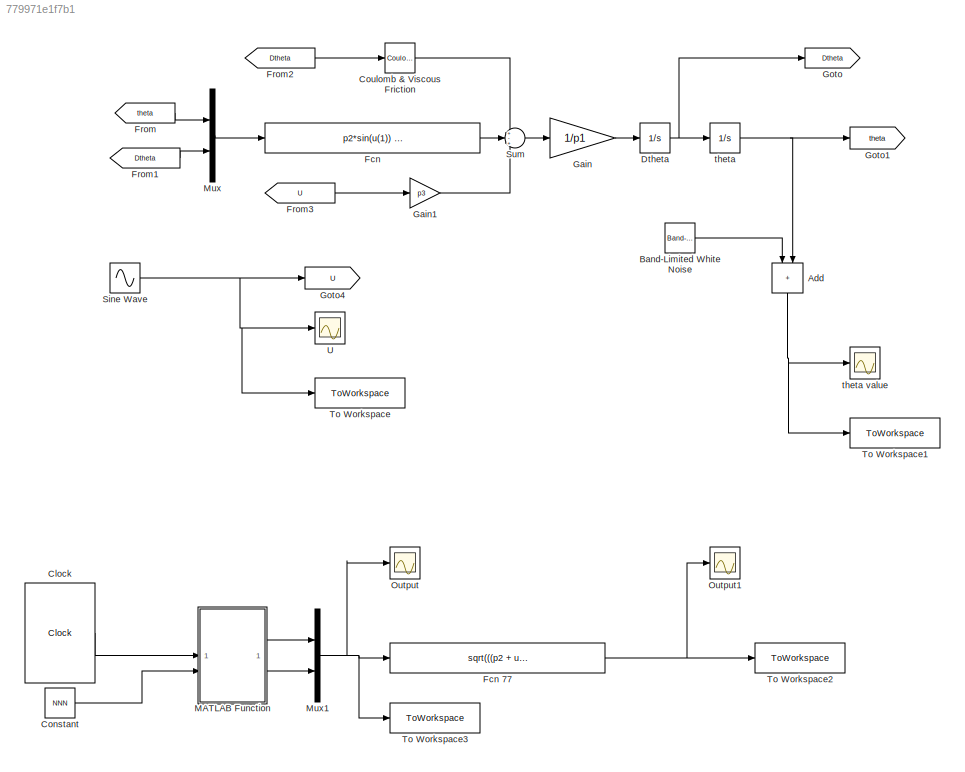
MODEL slx_779971e1f7b1
KIND model
CONFIG AbsTol = 1e-6
CONFIG EnableMultiTasking = off
CONFIG FixedStep = step_size
CONFIG MaxStep = auto
CONFIG MinStep = auto
CONFIG RelTol = 1e-6
CONFIG SampleTimeConstraint = Unconstrained
CONFIG SolverName = FixedStepAuto
CONFIG StartTime = 0.0
CONFIG StopTime = T
BLOCK [Sum] Add
  IconShape = rectangular
  NameLocation = left
BLOCK [Reference] Band-Limited White Noise  REF=simulink/Sources/Band-Limited
White Noise
  SourceBlock = simulink/Sources/Band-Limited\nWhite Noise
  SourceType = Band-Limited White Noise.
BLOCK [Clock] Clock
  Decimation = 100
  DisplayTime = on
BLOCK [Constant] Constant
  Value = NNN
BLOCK [Reference] Coulomb & Viscous Friction  REF=simulink/Discontinuities/Coulomb &
Viscous Friction
  SourceBlock = simulink/Discontinuities/Coulomb &\nViscous Friction
  SourceType = Coulombic and Viscous Friction
BLOCK [Integrator] Dtheta
  InitialCondition = Dth0
BLOCK [Fcn] Fcn
  Expr = p2*sin(u(1)) + Kf*u(2)
BLOCK [Fcn] Fcn 77
  Expr = sqrt(((p2 + u(1) * u(2) * g) / (p1 + u(1) * u(2)^2)) - (0.5) * (Kf^2) / ((p1 + u(1) * (u(2)^2))^2))
BLOCK [From] From
  GotoTag = theta
BLOCK [From] From1
  GotoTag = Dtheta
BLOCK [From] From2
  GotoTag = Dtheta
BLOCK [From] From3
  GotoTag = U
BLOCK [Gain] Gain
  Gain = 1/p1
BLOCK [Gain] Gain1
  Gain = p3
BLOCK [Goto] Goto
  GotoTag = Dtheta
BLOCK [Goto] Goto1
  GotoTag = theta
BLOCK [Goto] Goto4
  GotoTag = U
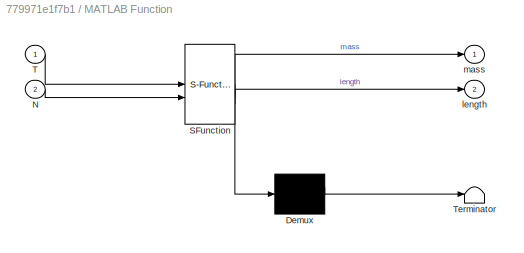
BLOCK [SubSystem] MATLAB Function
  ErrorFcn = Stateflow.Translate.translate
  PermitHierarchicalResolution = ExplicitOnly
  SFBlockType = MATLAB Function
  TreatAsAtomicUnit = on
BLOCK [Demux] MATLAB Function/ Demux 
  Outputs = 1
BLOCK [S-Function] MATLAB Function/ SFunction 
  EnableBusSupport = on
  FunctionName = sf_sfun
  PortCounts = [2 3]
  SFcnIsStateOwnerBlock = off
  SFunctionDeploymentMode = off
  Tag = Stateflow S-Function 2
BLOCK [Terminator] MATLAB Function/ Terminator 
BLOCK [Inport] MATLAB Function/N
  Port = 2
BLOCK [Inport] MATLAB Function/T
BLOCK [Outport] MATLAB Function/length
  Port = 2
BLOCK [Outport] MATLAB Function/mass
BLOCK [Mux] Mux
  DisplayOption = bar
  Inputs = 2
BLOCK [Mux] Mux1
  DisplayOption = bar
  Inputs = 2
BLOCK [Scope] Output
  Floating = off
  NumInputPorts = 1
  ScopeSpecificationString = Simulink.scopes.TimeScopeBlockCfg('CurrentConfiguration', extmgr.ConfigurationSet(extmgr.Configuration('Core','General UI',true),extmgr.Configuration('Core','Source UI',true),extmgr.Configuration('Sources','WiredSimulink',true,'DataLoggingVariableName','ScopeData1'),extmgr.Configuration('Visuals','Time Domain',true,'SerializedDisplays',{struct('MinYLimReal','-87.4','MaxYLimReal','787.6','YLabelRea...<+1445ch>
BLOCK [Scope] Output1
  Floating = off
  NumInputPorts = 1
  ScopeSpecificationString = Simulink.scopes.TimeScopeBlockCfg('CurrentConfiguration', extmgr.ConfigurationSet(extmgr.Configuration('Core','General UI',true),extmgr.Configuration('Core','Source UI',true),extmgr.Configuration('Sources','WiredSimulink',true,'DataLoggingVariableName','ScopeData2'),extmgr.Configuration('Visuals','Time Domain',true,'SerializedDisplays',{struct('MinYLimReal','-87.4','MaxYLimReal','787.6','YLabelRea...<+1450ch>
BLOCK [Sin] Sine Wave
  Amplitude = A_in2
  Frequency = Om_in2
  SampleTime = 0
BLOCK [Sum] Sum
  Inputs = +-+
BLOCK [ToWorkspace] To Workspace
  FixptAsFi = on
  MaxDataPoints = inf
  SampleTime = -1
  SaveFormat = Timeseries
  VariableName = u
BLOCK [ToWorkspace] To Workspace1
  FixptAsFi = on
  MaxDataPoints = inf
  SampleTime = -1
  SaveFormat = Timeseries
  VariableName = q
BLOCK [ToWorkspace] To Workspace2
  FixptAsFi = on
  MaxDataPoints = inf
  SampleTime = -1
  SaveFormat = Timeseries
  VariableName = omega_opt
BLOCK [ToWorkspace] To Workspace3
  FixptAsFi = on
  MaxDataPoints = inf
  SampleTime = -1
  SaveFormat = Timeseries
  VariableName = MnL
BLOCK [Scope] U
  Floating = off
  NumInputPorts = 1
  ScopeSpecificationString = Simulink.scopes.TimeScopeBlockCfg('CurrentConfiguration', extmgr.ConfigurationSet(extmgr.Configuration('Core','General UI',true),extmgr.Configuration('Core','Source UI',true),extmgr.Configuration('Sources','WiredSimulink',true,'DataLoggingVariableName','ScopeData1'),extmgr.Configuration('Visuals','Time Domain',true,'SerializedDisplays',{struct('MinYLimReal','-0.02195','MaxYLimReal','0.02193','YLab...<+1416ch>
BLOCK [Integrator] theta
  InitialCondition = th0
BLOCK [Scope] theta value
  Floating = off
  NumInputPorts = 1
  ScopeSpecificationString = Simulink.scopes.TimeScopeBlockCfg('CurrentConfiguration', extmgr.ConfigurationSet(extmgr.Configuration('Core','General UI',true),extmgr.Configuration('Core','Source UI',true),extmgr.Configuration('Sources','WiredSimulink',true,'DataLoggingVariableName','ScopeData1'),extmgr.Configuration('Visuals','Time Domain',true,'SerializedDisplays',{struct('MinYLimReal','-25.7602','MaxYLimReal','20.79361','YLa...<+1412ch>
NET Add:1 -> To Workspace1:1, theta value:1
LINE Band-Limited White Noise:1 -> Add:1
LINE Clock:1 -> MATLAB Function:1
LINE Constant:1 -> MATLAB Function:2
LINE Coulomb & Viscous Friction:1 -> Sum:1
NET Dtheta:1 -> Goto:1, theta:1
NET Fcn 77:1 -> Output1:1, To Workspace2:1
LINE Fcn:1 -> Sum:2
LINE From1:1 -> Mux:2
LINE From2:1 -> Coulomb & Viscous Friction:1
LINE From3:1 -> Gain1:1
LINE From:1 -> Mux:1
LINE Gain1:1 -> Sum:3
LINE Gain:1 -> Dtheta:1
LINE MATLAB Function:1 -> Mux1:1
LINE MATLAB Function:2 -> Mux1:2
NET Mux1:1 -> Fcn 77:1, Output:1, To Workspace3:1
LINE Mux:1 -> Fcn:1
NET Sine Wave:1 -> Goto4:1, To Workspace:1, U:1
LINE Sum:1 -> Gain:1
NET theta:1 -> Add:2, Goto1:1
note: NET lines group one-source signal fan-out (src -> all destinations, sorted); 1:1 wires keep LINE
CHART MATLAB Function states=1 transitions=1
  STATE_LABEL 'eML_blk_kernel()'
  STATE_LABEL 'SCRIPT:\n% function [mass, length] = increment_variables(T)\n%     % u is the simulation time input (from the Clock block or similar)\n% \n%     % Persistent variables to store the current values of mass and length\n%     persistent current_mass current_length\n% \n%     % Initial conditions (starting values for mass and length)\n%     if isempty(current_mass)\n%         current_mass = 0.1;  % Initial mass...<+2208ch>'
CHART  states=0 transitions=0
